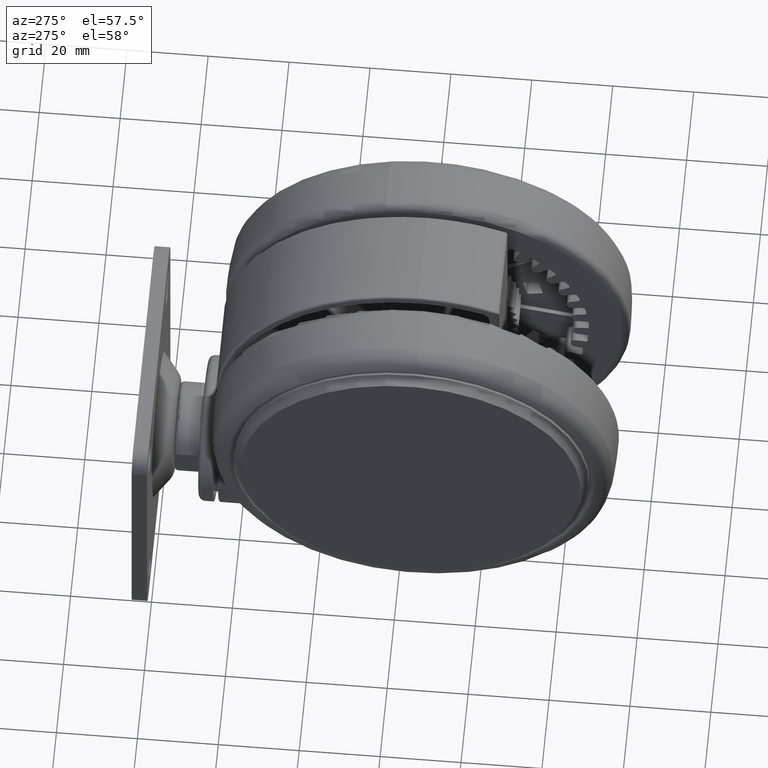
[diagram: clean part render]
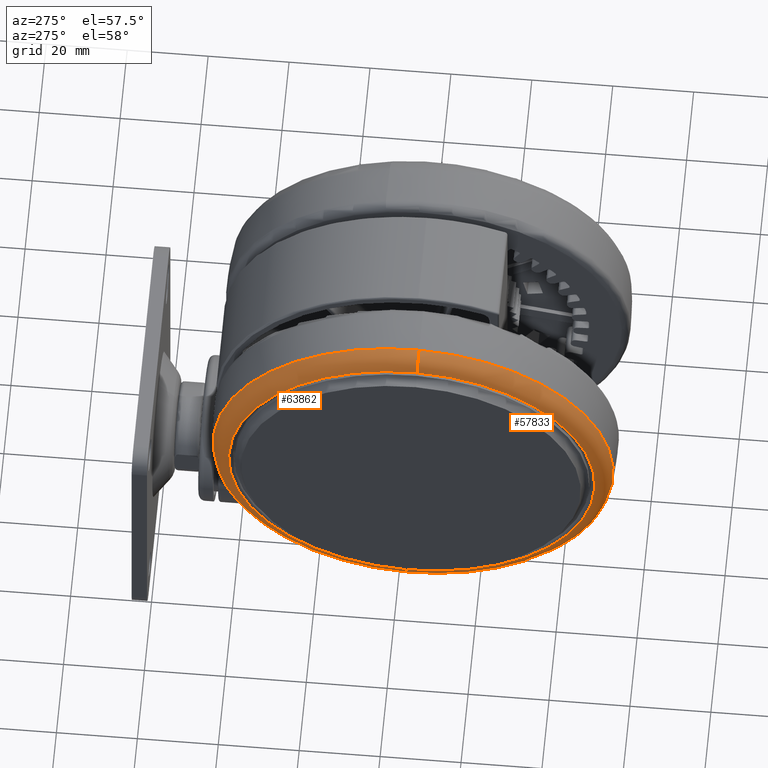
[diagram: same view with one multi-face feature highlighted, each face labeled with its STEP entity id]
A machine part, auxiliary view. The highlighted faces form ONE feature: a constant-radius fillet chain: 2 tangent blend faces with common blend radius 4.5 mm. The faces share edges in the B-rep.
Their STEP definitions:
[1] entity #57833 (Torus):
#711 = CARTESIAN_POINT ( 'NONE',  ( 43.70211834235011100, 10.72938602421347400, -58.60606618158729500 ) ) ;
#1670 = AXIS2_PLACEMENT_3D ( 'NONE', #711, #42932, #6794 ) ;
#2907 = ORIENTED_EDGE ( 'NONE', *, *, #73434, .T. ) ;
#3961 = CARTESIAN_POINT ( 'NONE',  ( -43.70223229652640400, -10.72939980808207800, -58.60606618158729500 ) ) ;
#4645 = EDGE_CURVE ( 'NONE', #17220, #23389, #46330, .T. ) ;
#6794 = DIRECTION ( 'NONE',  ( -0.9711594515430722600, -0.2384309536921729300, 0.0000000000000000000 ) ) ;
#7125 = AXIS2_PLACEMENT_3D ( 'NONE', #29573, #71860, #35655 ) ;
#7396 = CARTESIAN_POINT ( 'NONE',  ( 48.04547730857387900, 11.79573122519847700, -59.10420351503972100 ) ) ;
#7461 = CARTESIAN_POINT ( 'NONE',  ( 43.96698001097855300, 10.79441264795403500, -63.09779411578139700 ) ) ;
#9489 = AXIS2_PLACEMENT_3D ( 'NONE', #3961, #46175, #10063 ) ;
#10063 = DIRECTION ( 'NONE',  ( 0.9711594515430722600, 0.2384309536921725700, 0.0000000000000000000 ) ) ;
#10285 = CIRCLE ( 'NONE', #7125, 45.27272727274608900 ) ;
#10494 = EDGE_CURVE ( 'NONE', #27316, #64840, #10285, .T. ) ;
#12768 = EDGE_CURVE ( 'NONE', #17220, #27316, #37259, .T. ) ;
#13816 = TOROIDAL_SURFACE ( 'NONE', #41701, 45.00000000000000000, 4.500000000013238300 ) ;
#15637 = DIRECTION ( 'NONE',  ( -0.0000000000000000000, 0.0000000000000000000, -1.000000000000000000 ) ) ;
#17220 = VERTEX_POINT ( 'NONE', #7396 ) ;
#23389 = VERTEX_POINT ( 'NONE', #56088 ) ;
#24390 = ORIENTED_EDGE ( 'NONE', *, *, #10494, .F. ) ;
#24645 = ORIENTED_EDGE ( 'NONE', *, *, #12768, .F. ) ;
#27316 = VERTEX_POINT ( 'NONE', #7461 ) ;
#29573 = CARTESIAN_POINT ( 'NONE',  ( -5.697708814478286100E-005, -6.891934304503744000E-006, -63.09779411578139700 ) ) ;
#33531 = AXIS2_PLACEMENT_3D ( 'NONE', #51767, #15637, #57854 ) ;
#34066 = EDGE_LOOP ( 'NONE', ( #24645, #51894, #2907, #24390 ) ) ;
#34455 = CIRCLE ( 'NONE', #9489, 4.500000000013239200 ) ;
#35655 = DIRECTION ( 'NONE',  ( -0.9711594515430723700, -0.2384309536921727400, 0.0000000000000000000 ) ) ;
#35932 = DIRECTION ( 'NONE',  ( -0.0000000000000000000, 0.0000000000000000000, -1.000000000000000000 ) ) ;
#37259 = CIRCLE ( 'NONE', #1670, 4.500000000013239200 ) ;
#41701 = AXIS2_PLACEMENT_3D ( 'NONE', #72121, #35932, #42005 ) ;
#42005 = DIRECTION ( 'NONE',  ( -0.9711594515430722600, -0.2384309536921727600, 0.0000000000000000000 ) ) ;
#42932 = DIRECTION ( 'NONE',  ( -0.2384309536921728800, 0.9711594515430723700, 0.0000000000000000000 ) ) ;
#46175 = DIRECTION ( 'NONE',  ( 0.2384309536921727600, -0.9711594515430723700, -0.0000000000000000000 ) ) ;
#46330 = CIRCLE ( 'NONE', #33531, 49.47234381472850400 ) ;
#51767 = CARTESIAN_POINT ( 'NONE',  ( -5.697708814478286100E-005, -6.891934304503744000E-006, -59.10420351503972100 ) ) ;
#51894 = ORIENTED_EDGE ( 'NONE', *, *, #4645, .T. ) ;
#56088 = CARTESIAN_POINT ( 'NONE',  ( -48.04559126275016500, -11.79574500906708100, -59.10420351503972100 ) ) ;
#57833 = ADVANCED_FACE ( 'NONE', ( #76136 ), #13816, .T. ) ;
#57854 = DIRECTION ( 'NONE',  ( -0.9711594515430722600, -0.2384309536921727400, 0.0000000000000000000 ) ) ;
#59391 = CARTESIAN_POINT ( 'NONE',  ( -43.96709396515484500, -10.79442643182264000, -63.09779411578139700 ) ) ;
#64840 = VERTEX_POINT ( 'NONE', #59391 ) ;
#71860 = DIRECTION ( 'NONE',  ( -0.0000000000000000000, 0.0000000000000000000, -1.000000000000000000 ) ) ;
#72121 = CARTESIAN_POINT ( 'NONE',  ( -5.697708814478286100E-005, -6.891934304503744000E-006, -58.60606618158729500 ) ) ;
#73434 = EDGE_CURVE ( 'NONE', #23389, #64840, #34455, .T. ) ;
#76136 = FACE_OUTER_BOUND ( 'NONE', #34066, .T. ) ;
[2] entity #63862 (Torus):
#257 = CARTESIAN_POINT ( 'NONE',  ( -5.697708814478286100E-005, -6.891934304503744000E-006, -63.09779411578139700 ) ) ;
#711 = CARTESIAN_POINT ( 'NONE',  ( 43.70211834235011100, 10.72938602421347400, -58.60606618158729500 ) ) ;
#1104 = CARTESIAN_POINT ( 'NONE',  ( -5.697708814478286100E-005, -6.891934304503744000E-006, -59.10420351503972100 ) ) ;
#1353 = ORIENTED_EDGE ( 'NONE', *, *, #12768, .T. ) ;
#1670 = AXIS2_PLACEMENT_3D ( 'NONE', #711, #42932, #6794 ) ;
#3364 = EDGE_CURVE ( 'NONE', #64840, #27316, #40856, .T. ) ;
#3961 = CARTESIAN_POINT ( 'NONE',  ( -43.70223229652640400, -10.72939980808207800, -58.60606618158729500 ) ) ;
#6365 = DIRECTION ( 'NONE',  ( -0.9711594515430723700, -0.2384309536921727400, 0.0000000000000000000 ) ) ;
#6794 = DIRECTION ( 'NONE',  ( -0.9711594515430722600, -0.2384309536921729300, 0.0000000000000000000 ) ) ;
#7216 = DIRECTION ( 'NONE',  ( -0.9711594515430722600, -0.2384309536921727400, 0.0000000000000000000 ) ) ;
#7396 = CARTESIAN_POINT ( 'NONE',  ( 48.04547730857387900, 11.79573122519847700, -59.10420351503972100 ) ) ;
#7461 = CARTESIAN_POINT ( 'NONE',  ( 43.96698001097855300, 10.79441264795403500, -63.09779411578139700 ) ) ;
#7898 = ORIENTED_EDGE ( 'NONE', *, *, #3364, .F. ) ;
#9489 = AXIS2_PLACEMENT_3D ( 'NONE', #3961, #46175, #10063 ) ;
#10063 = DIRECTION ( 'NONE',  ( 0.9711594515430722600, 0.2384309536921725700, 0.0000000000000000000 ) ) ;
#12768 = EDGE_CURVE ( 'NONE', #17220, #27316, #37259, .T. ) ;
#16888 = CIRCLE ( 'NONE', #25421, 49.47234381472850400 ) ;
#17220 = VERTEX_POINT ( 'NONE', #7396 ) ;
#23389 = VERTEX_POINT ( 'NONE', #56088 ) ;
#25421 = AXIS2_PLACEMENT_3D ( 'NONE', #1104, #43323, #7216 ) ;
#27298 = FACE_OUTER_BOUND ( 'NONE', #42590, .T. ) ;
#27316 = VERTEX_POINT ( 'NONE', #7461 ) ;
#34455 = CIRCLE ( 'NONE', #9489, 4.500000000013239200 ) ;
#35431 = DIRECTION ( 'NONE',  ( -0.0000000000000000000, 0.0000000000000000000, -1.000000000000000000 ) ) ;
#36063 = AXIS2_PLACEMENT_3D ( 'NONE', #41503, #35431, #53412 ) ;
#37259 = CIRCLE ( 'NONE', #1670, 4.500000000013239200 ) ;
#40856 = CIRCLE ( 'NONE', #65830, 45.27272727274608900 ) ;
#41503 = CARTESIAN_POINT ( 'NONE',  ( -5.697708814478286100E-005, -6.891934304503744000E-006, -58.60606618158729500 ) ) ;
#42485 = DIRECTION ( 'NONE',  ( -0.0000000000000000000, 0.0000000000000000000, -1.000000000000000000 ) ) ;
#42590 = EDGE_LOOP ( 'NONE', ( #73254, #1353, #7898, #43745 ) ) ;
#42932 = DIRECTION ( 'NONE',  ( -0.2384309536921728800, 0.9711594515430723700, 0.0000000000000000000 ) ) ;
#43323 = DIRECTION ( 'NONE',  ( -0.0000000000000000000, 0.0000000000000000000, -1.000000000000000000 ) ) ;
#43745 = ORIENTED_EDGE ( 'NONE', *, *, #73434, .F. ) ;
#46175 = DIRECTION ( 'NONE',  ( 0.2384309536921727600, -0.9711594515430723700, -0.0000000000000000000 ) ) ;
#53412 = DIRECTION ( 'NONE',  ( -0.9711594515430722600, -0.2384309536921727600, 0.0000000000000000000 ) ) ;
#55999 = EDGE_CURVE ( 'NONE', #23389, #17220, #16888, .T. ) ;
#56088 = CARTESIAN_POINT ( 'NONE',  ( -48.04559126275016500, -11.79574500906708100, -59.10420351503972100 ) ) ;
#57560 = TOROIDAL_SURFACE ( 'NONE', #36063, 45.00000000000000000, 4.500000000013238300 ) ;
#59391 = CARTESIAN_POINT ( 'NONE',  ( -43.96709396515484500, -10.79442643182264000, -63.09779411578139700 ) ) ;
#63862 = ADVANCED_FACE ( 'NONE', ( #27298 ), #57560, .T. ) ;
#64840 = VERTEX_POINT ( 'NONE', #59391 ) ;
#65830 = AXIS2_PLACEMENT_3D ( 'NONE', #257, #42485, #6365 ) ;
#73254 = ORIENTED_EDGE ( 'NONE', *, *, #55999, .T. ) ;
#73434 = EDGE_CURVE ( 'NONE', #23389, #64840, #34455, .T. ) ;